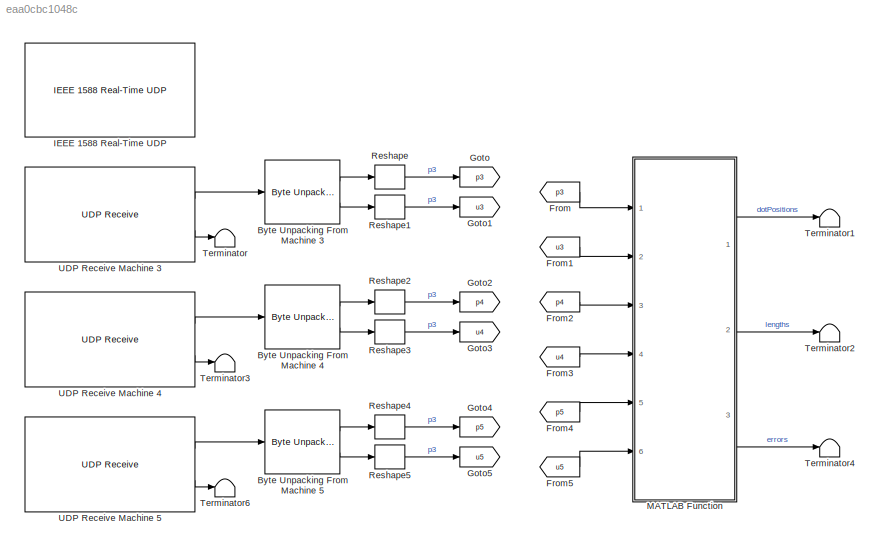
MODEL slx_eaa0cbc1048c
KIND model
CONFIG AbsTol = auto
CONFIG EnableMultiTasking = on
CONFIG FixedStep = 0.01
CONFIG MaxStep = auto
CONFIG MinStep = auto
CONFIG RelTol = 1e-3
CONFIG SampleTimeConstraint = Unconstrained
CONFIG Solver = ode8
CONFIG SolverName = ode8
CONFIG StartTime = 0.0
CONFIG StopFcn = % stopCallback
CONFIG StopTime = Inf
BLOCK [Reference] Byte Unpacking From Machine 3   REF=xpcutilitieslib/Byte Unpacking 
  Ports = [1, 2]
  SourceBlock = xpcutilitieslib/Byte Unpacking
  SourceProductBaseCode = XP
  SourceProductName = Simulink Real-Time
  SourceType = xpcbytepacking
BLOCK [Reference] Byte Unpacking From Machine 4  REF=xpcutilitieslib/Byte Unpacking 
  Ports = [1, 2]
  SourceBlock = xpcutilitieslib/Byte Unpacking
  SourceProductBaseCode = XP
  SourceProductName = Simulink Real-Time
  SourceType = xpcbytepacking
BLOCK [Reference] Byte Unpacking From Machine 5  REF=xpcutilitieslib/Byte Unpacking 
  Ports = [1, 2]
  SourceBlock = xpcutilitieslib/Byte Unpacking
  SourceProductBaseCode = XP
  SourceProductName = Simulink Real-Time
  SourceType = xpcbytepacking
BLOCK [From] From
  GotoTag = p3
BLOCK [From] From1
  GotoTag = u3
BLOCK [From] From2
  GotoTag = p4
BLOCK [From] From3
  GotoTag = u4
BLOCK [From] From4
  GotoTag = p5
BLOCK [From] From5
  GotoTag = u5
BLOCK [Goto] Goto
  GotoTag = p3
BLOCK [Goto] Goto1
  GotoTag = u3
BLOCK [Goto] Goto2
  GotoTag = p4
BLOCK [Goto] Goto3
  GotoTag = u4
BLOCK [Goto] Goto4
  GotoTag = p5
BLOCK [Goto] Goto5
  GotoTag = u5
BLOCK [Reference] IEEE 1588 Real-Time UDP  REF=ptplib/IEEE 1588 Real-Time UDP
  Ports = []
  Priority = 0
  SourceBlock = ptplib/IEEE 1588 Real-Time UDP
  SourceProductBaseCode = XP
  SourceProductName = Simulink Real-Time
  SourceType = IEEE1588_UDP
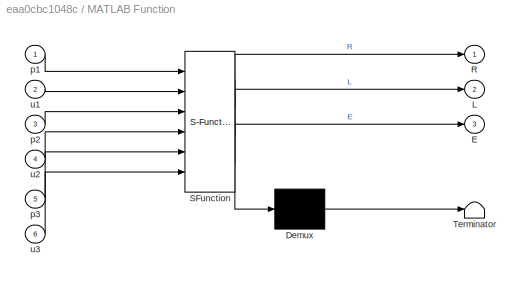
BLOCK [SubSystem] MATLAB Function
  ErrorFcn = Stateflow.Translate.translate
  PermitHierarchicalResolution = ExplicitOnly
  Ports = [6, 3]
  RequestExecContextInheritance = off
  SFBlockType = MATLAB Function
  TreatAsAtomicUnit = on
BLOCK [Demux] MATLAB Function/ Demux 
  Outputs = 1
  Ports = [1, 1]
BLOCK [S-Function] MATLAB Function/ SFunction 
  EnableBusSupport = on
  FunctionName = sf_sfun
  PortCounts = [6 4]
  Ports = [6, 4]
  SFcnIsStateOwnerBlock = off
  SFunctionDeploymentMode = off
  Tag = Stateflow S-Function model2_cm 2
BLOCK [Terminator] MATLAB Function/ Terminator 
BLOCK [Outport] MATLAB Function/E
  IconDisplay = Port number
  Port = 3
BLOCK [Outport] MATLAB Function/L
  IconDisplay = Port number
  Port = 2
BLOCK [Outport] MATLAB Function/R
  IconDisplay = Port number
BLOCK [Inport] MATLAB Function/p1
  IconDisplay = Port number
BLOCK [Inport] MATLAB Function/p2
  IconDisplay = Port number
  Port = 3
BLOCK [Inport] MATLAB Function/p3
  IconDisplay = Port number
  Port = 5
BLOCK [Inport] MATLAB Function/u1
  IconDisplay = Port number
  Port = 2
BLOCK [Inport] MATLAB Function/u2
  IconDisplay = Port number
  Port = 4
BLOCK [Inport] MATLAB Function/u3
  IconDisplay = Port number
  Port = 6
BLOCK [Reshape] Reshape
  OutputDimensionality = Customize
  OutputDimensions = [3,9]
  Ports = [1, 1]
BLOCK [Reshape] Reshape1
  OutputDimensionality = Customize
  OutputDimensions = [3,9]
  Ports = [1, 1]
BLOCK [Reshape] Reshape2
  OutputDimensionality = Customize
  OutputDimensions = [3,9]
  Ports = [1, 1]
BLOCK [Reshape] Reshape3
  OutputDimensionality = Customize
  OutputDimensions = [3,9]
  Ports = [1, 1]
BLOCK [Reshape] Reshape4
  OutputDimensionality = Customize
  OutputDimensions = [3,9]
  Ports = [1, 1]
BLOCK [Reshape] Reshape5
  OutputDimensionality = Customize
  OutputDimensions = [3,9]
  Ports = [1, 1]
BLOCK [Terminator] Terminator
BLOCK [Terminator] Terminator1
BLOCK [Terminator] Terminator2
BLOCK [Terminator] Terminator3
BLOCK [Terminator] Terminator4
BLOCK [Terminator] Terminator6
BLOCK [Reference] UDP Receive Machine 3  REF=xpcrtudplib/UDP Receive
  Ports = [0, 2]
  SourceBlock = xpcrtudplib/UDP Receive
  SourceProductBaseCode = XP
  SourceProductName = Simulink Real-Time
  SourceType = slrtudpreceive
BLOCK [Reference] UDP Receive Machine 4  REF=xpcrtudplib/UDP Receive
  Ports = [0, 2]
  SourceBlock = xpcrtudplib/UDP Receive
  SourceProductBaseCode = XP
  SourceProductName = Simulink Real-Time
  SourceType = slrtudpreceive
BLOCK [Reference] UDP Receive Machine 5  REF=xpcrtudplib/UDP Receive
  Ports = [0, 2]
  SourceBlock = xpcrtudplib/UDP Receive
  SourceProductBaseCode = XP
  SourceProductName = Simulink Real-Time
  SourceType = slrtudpreceive
LINE Byte Unpacking From Machine 3 :1 -> Reshape:1
LINE Byte Unpacking From Machine 3 :2 -> Reshape1:1
LINE Byte Unpacking From Machine 4:1 -> Reshape2:1
LINE Byte Unpacking From Machine 4:2 -> Reshape3:1
LINE Byte Unpacking From Machine 5:1 -> Reshape4:1
LINE Byte Unpacking From Machine 5:2 -> Reshape5:1
LINE From1:1 -> MATLAB Function:2
LINE From2:1 -> MATLAB Function:3
LINE From3:1 -> MATLAB Function:4
LINE From4:1 -> MATLAB Function:5
LINE From5:1 -> MATLAB Function:6
LINE From:1 -> MATLAB Function:1
LINE MATLAB Function:1 -> Terminator1:1
LINE MATLAB Function:2 -> Terminator2:1
LINE MATLAB Function:3 -> Terminator4:1
LINE Reshape1:1 -> Goto1:1
LINE Reshape2:1 -> Goto2:1
LINE Reshape3:1 -> Goto3:1
LINE Reshape4:1 -> Goto4:1
LINE Reshape5:1 -> Goto5:1
LINE Reshape:1 -> Goto:1
LINE UDP Receive Machine 3:1 -> Byte Unpacking From Machine 3 :1
LINE UDP Receive Machine 3:2 -> Terminator:1
LINE UDP Receive Machine 4:1 -> Byte Unpacking From Machine 4:1
LINE UDP Receive Machine 4:2 -> Terminator3:1
LINE UDP Receive Machine 5:1 -> Byte Unpacking From Machine 5:1
LINE UDP Receive Machine 5:2 -> Terminator6:1
CHART MATLAB Function states=1 transitions=1
  STATE_LABEL 'eML_blk_kernel()'
  STATE_LABEL 'SCRIPT:\nfunction [R,L,E] = fcn(p1,u1,p2,u2,p3,u3)\n% Function to calculate the least squares solution for the position of the\n% dots being tracked on machines 3, 4, and 5.\n% In this documentation:\n% N is the number of dots being tracked.\n% i is an index that runs from 1 to N and refers to which dot is being\n% tracked.\n% j is an index that runs from 1 to 3 and refers to which camera is being\n% consi...<+2040ch>'
